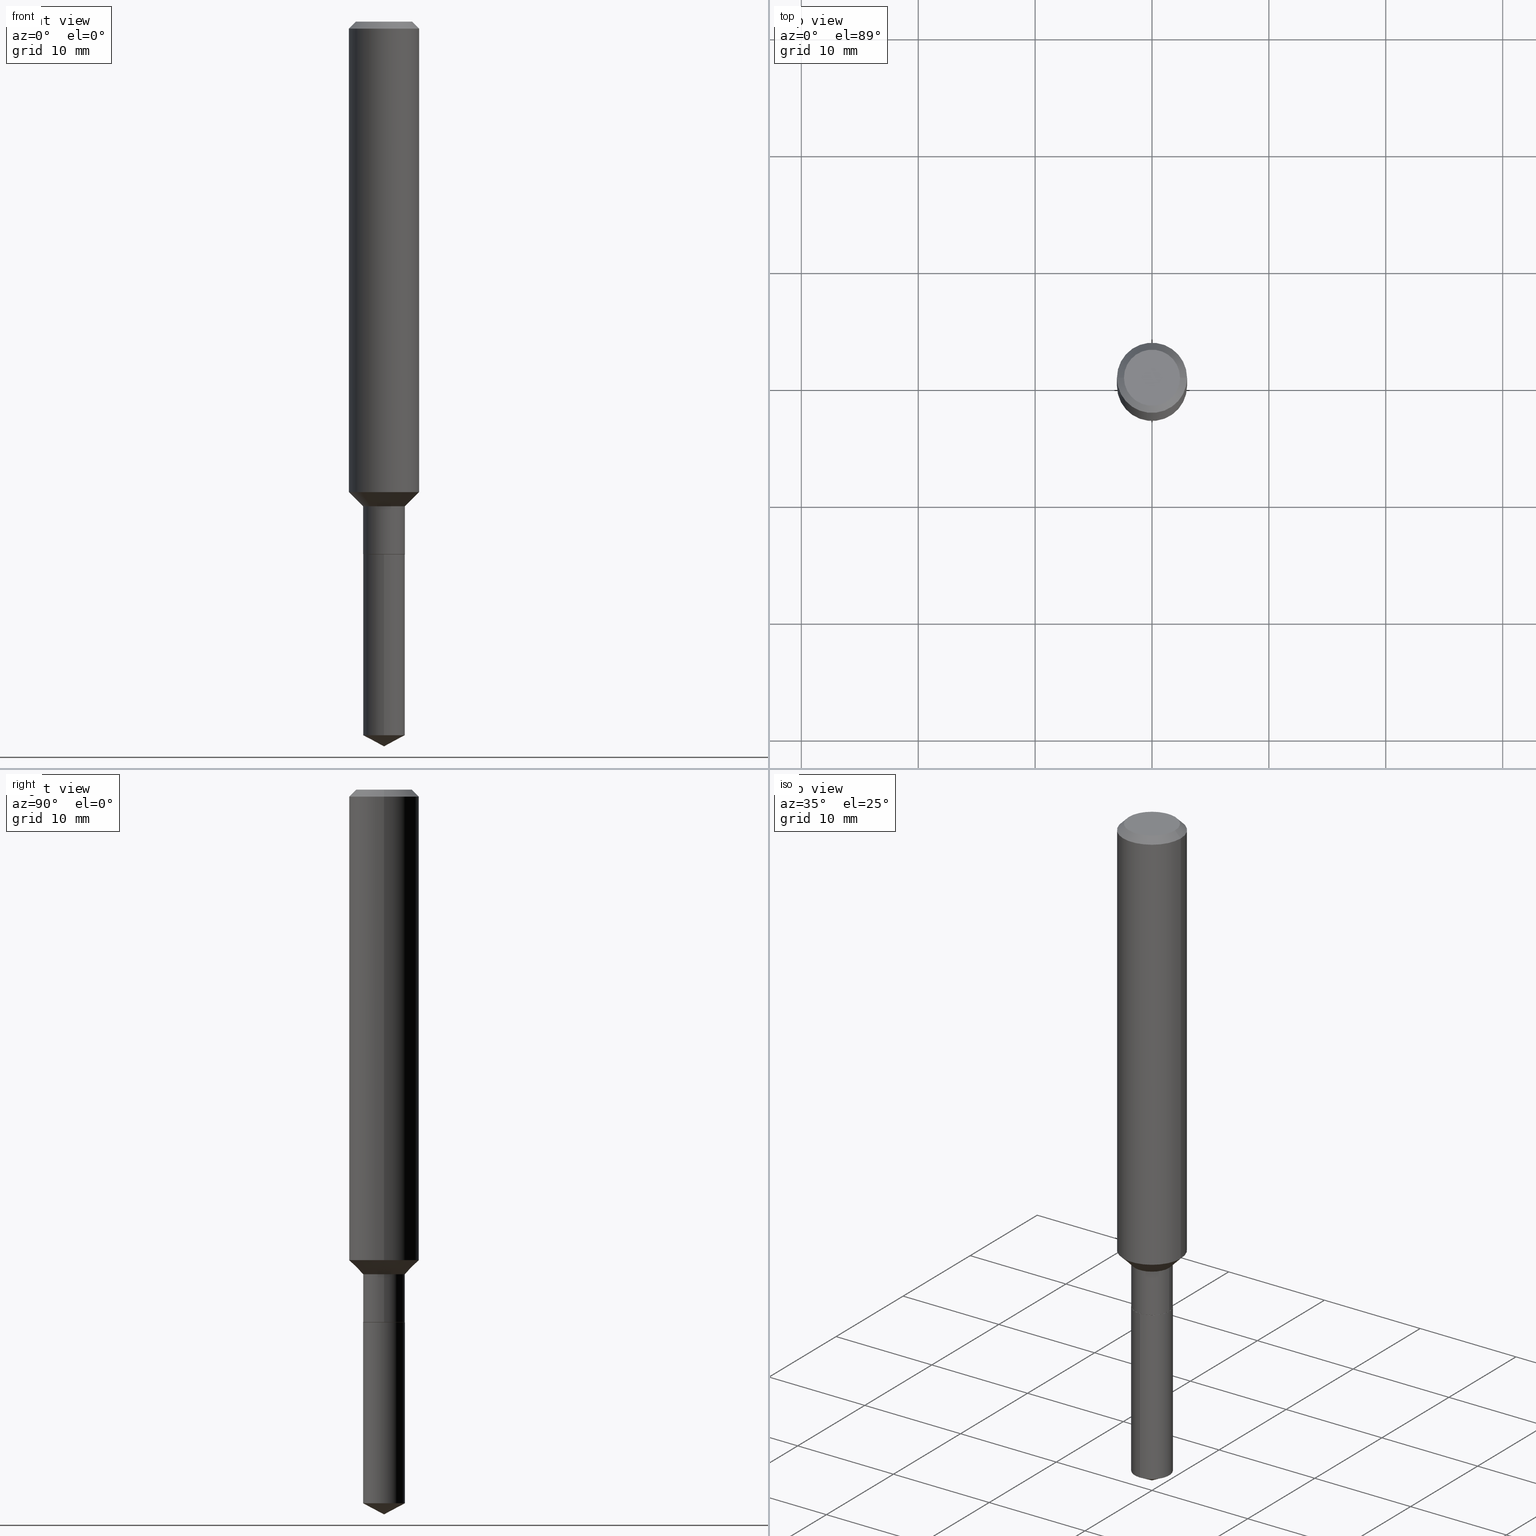
[diagram: canonical four-view strip — front | top / right | iso, engineering-drawing reading convention]
A machine part, canonical four-view strip (front | top / right | iso — engineering-drawing reading convention). The complete STEP part file that produces these views, byte-faithful:
ISO-10303-21;
HEADER;
FILE_DESCRIPTION (( 'STEP AP203' ),
    '1' );
FILE_NAME ('54602.STEP',
    '2024-04-24T15:00:43',
    ( '' ),
    ( '' ),
    'SwSTEP 2.0',
    'SolidWorks 2023',
    '' );
FILE_SCHEMA (( 'CONFIG_CONTROL_DESIGN' ));
ENDSEC;

DATA;
#1 = FACE_OUTER_BOUND ( 'NONE', #437, .T. ) ;
#2 = CALENDAR_DATE ( 2024, 24, 4 ) ;
#3 = DIRECTION ( 'NONE',  ( -2.445544220405332064E-29, 3.491373341387514787E-15, 1.000000000000000000 ) ) ;
#4 = EDGE_CURVE ( 'NONE', #72, #319, #293, .T. ) ;
#5 = FACE_OUTER_BOUND ( 'NONE', #371, .T. ) ;
#6 = LOCAL_TIME ( 11, 0, 43.00000000000000000, #395 ) ;
#7 = LINE ( 'NONE', #468, #381 ) ;
#8 = DIRECTION ( 'NONE',  ( -2.445468806185136597E-29, 3.491481338843145583E-15, 1.000000000000000000 ) ) ;
#9 = DATE_AND_TIME ( #2, #369 ) ;
#10 = ADVANCED_FACE ( 'NONE', ( #139 ), #255, .T. ) ;
#11 = CARTESIAN_POINT ( 'NONE',  ( 3.991983279216617405E-29, -5.699494137527552043E-15, -1.632400000000000295 ) ) ;
#12 = ORIENTED_EDGE ( 'NONE', *, *, #99, .T. ) ;
#13 = CARTESIAN_POINT ( 'NONE',  ( 0.1180999999999999966, -9.071566814582237199E-16, -0.02362000000000013741 ) ) ;
#14 = CIRCLE ( 'NONE', #389, 0.07029999999999998750 ) ;
#15 = EDGE_LOOP ( 'NONE', ( #201, #32, #198, #194 ) ) ;
#16 = DIRECTION ( 'NONE',  ( 1.000000000000000000, 0.000000000000000000, 0.000000000000000000 ) ) ;
#17 = CARTESIAN_POINT ( 'NONE',  ( 0.1181000000000001909, -6.357289221765599043E-15, -1.584600000000000453 ) ) ;
#18 = ORIENTED_EDGE ( 'NONE', *, *, #182, .F. ) ;
#19 = ADVANCED_FACE ( 'NONE', ( #406 ), #177, .T. ) ;
#20 = DIRECTION ( 'NONE',  ( -2.445544220405332064E-29, 3.491373341387514787E-15, 1.000000000000000000 ) ) ;
#21 = ORIENTED_EDGE ( 'NONE', *, *, #374, .F. ) ;
#22 =( NAMED_UNIT ( * ) SI_UNIT ( $, .STERADIAN. ) SOLID_ANGLE_UNIT ( ) );
#23 = DIRECTION ( 'NONE',  ( -2.445468806185136597E-29, 3.491481338843145583E-15, 1.000000000000000000 ) ) ;
#24 = VECTOR ( 'NONE', #410, 39.37007874015748143 ) ;
#25 = ORIENTED_EDGE ( 'NONE', *, *, #239, .F. ) ;
#26 = CALENDAR_DATE ( 2024, 24, 4 ) ;
#27 = CARTESIAN_POINT ( 'NONE',  ( 4.386192850773661378E-29, -6.262320929349066882E-15, -1.793600000000000305 ) ) ;
#28 = ORIENTED_EDGE ( 'NONE', *, *, #330, .F. ) ;
#29 = COORDINATED_UNIVERSAL_TIME_OFFSET ( 5, 0, .BEHIND. ) ;
#30 = DIRECTION ( 'NONE',  ( -6.982962677686265133E-15, -1.000000000000000000, 3.885985766236505386E-15 ) ) ;
#31 = ORIENTED_EDGE ( 'NONE', *, *, #323, .F. ) ;
#32 = ORIENTED_EDGE ( 'NONE', *, *, #379, .T. ) ;
#33 = VECTOR ( 'NONE', #380, 39.37007874015748143 ) ;
#34 = PRODUCT_DEFINITION_SHAPE ( 'NONE', 'NONE',  #252 ) ;
#35 = VECTOR ( 'NONE', #92, 39.37007874015748143 ) ;
#36 = ORIENTED_EDGE ( 'NONE', *, *, #268, .T. ) ;
#37 = VERTEX_POINT ( 'NONE', #140 ) ;
#38 = EDGE_CURVE ( 'NONE', #388, #306, #110, .T. ) ;
#39 = CARTESIAN_POINT ( 'NONE',  ( 5.776197320209326656E-31, -8.246878922347558061E-17, -0.02362000000000013741 ) ) ;
#40 = AXIS2_PLACEMENT_3D ( 'NONE', #299, #3, #266 ) ;
#41 = AXIS2_PLACEMENT_3D ( 'NONE', #473, #420, #192 ) ;
#42 = LINE ( 'NONE', #222, #254 ) ;
#43 = DIRECTION ( 'NONE',  ( -2.445468806185136597E-29, 3.491481338843145583E-15, 1.000000000000000000 ) ) ;
#44 = EDGE_CURVE ( 'NONE', #142, #37, #209, .T. ) ;
#45 = DIRECTION ( 'NONE',  ( -6.982962677686265133E-15, -1.000000000000000000, 3.885985766236505386E-15 ) ) ;
#46 = APPLICATION_CONTEXT ( 'configuration controlled 3d designs of mechanical parts and assemblies' ) ;
#47 = CARTESIAN_POINT ( 'NONE',  ( -9.031207493296003727E-28, 1.289333564144852542E-13, 36.92917874015748225 ) ) ;
#48 = FACE_OUTER_BOUND ( 'NONE', #128, .T. ) ;
#49 = DIRECTION ( 'NONE',  ( -2.445544220405332064E-29, 3.491373341387514787E-15, 1.000000000000000000 ) ) ;
#50 = ORIENTED_EDGE ( 'NONE', *, *, #257, .T. ) ;
#51 = APPROVAL_PERSON_ORGANIZATION ( #237, #413, #321 ) ;
#52 = DIRECTION ( 'NONE',  ( 1.000000000000000000, -6.982962677686266711E-15, 0.000000000000000000 ) ) ;
#53 = AXIS2_PLACEMENT_3D ( 'NONE', #136, #274, #384 ) ;
#54 = EDGE_CURVE ( 'NONE', #483, #487, #225, .T. ) ;
#55 = ORIENTED_EDGE ( 'NONE', *, *, #379, .F. ) ;
#56 = PERSON_AND_ORGANIZATION_ROLE ( 'design_owner' ) ;
#57 = CYLINDRICAL_SURFACE ( 'NONE', #375, 0.07030000000000000138 ) ;
#58 = ORIENTED_EDGE ( 'NONE', *, *, #171, .F. ) ;
#59 = DIRECTION ( 'NONE',  ( 1.000000000000000000, -6.982962677686266711E-15, 4.876176775795935232E-29 ) ) ;
#60 = DATE_AND_TIME ( #26, #131 ) ;
#61 = CARTESIAN_POINT ( 'NONE',  ( 0.1181000000000001077, -8.246878922347488542E-16, 5.758764772215005345E-30 ) ) ;
#62 = AXIS2_PLACEMENT_3D ( 'NONE', #123, #20, #271 ) ;
#63 = ORIENTED_EDGE ( 'NONE', *, *, #121, .F. ) ;
#64 = DIRECTION ( 'NONE',  ( -2.445468806185136597E-29, 3.491481338843145583E-15, 1.000000000000000000 ) ) ;
#65 = ORIENTED_EDGE ( 'NONE', *, *, #171, .T. ) ;
#66 = DIRECTION ( 'NONE',  ( -2.445544220405332064E-29, 3.491373341387514787E-15, 1.000000000000000000 ) ) ;
#67 = CARTESIAN_POINT ( 'NONE',  ( 5.776197320209326656E-31, -8.246878922347558061E-17, -0.02362000000000013741 ) ) ;
#68 = ORIENTED_EDGE ( 'NONE', *, *, #416, .F. ) ;
#69 = AXIS2_PLACEMENT_3D ( 'NONE', #67, #143, #297 ) ;
#70 = AXIS2_PLACEMENT_3D ( 'NONE', #97, #64, #104 ) ;
#71 = APPLICATION_CONTEXT ( 'configuration controlled 3d designs of mechanical parts and assemblies' ) ;
#72 = VERTEX_POINT ( 'NONE', #457 ) ;
#73 = CC_DESIGN_DATE_AND_TIME_ASSIGNMENT ( #398, #282, ( #252 ) ) ;
#74 = LINE ( 'NONE', #259, #368 ) ;
#75 = CARTESIAN_POINT ( 'NONE',  ( -1.414760311887566167E-46, 2.019902775041730779E-32, 5.785231479172097515E-18 ) ) ;
#76 = AXIS2_PLACEMENT_3D ( 'NONE', #168, #366, #399 ) ;
#77 = ADVANCED_FACE ( 'NONE', ( #5 ), #234, .T. ) ;
#78 = DIRECTION ( 'NONE',  ( 1.000000000000000000, -6.982962677686266711E-15, 0.000000000000000000 ) ) ;
#79 = CC_DESIGN_PERSON_AND_ORGANIZATION_ASSIGNMENT ( #91, #402, ( #278 ) ) ;
#80 = LINE ( 'NONE', #219, #419 ) ;
#81 = FACE_OUTER_BOUND ( 'NONE', #465, .T. ) ;
#82 = AXIS2_PLACEMENT_3D ( 'NONE', #11, #155, #52 ) ;
#83 = CARTESIAN_POINT ( 'NONE',  ( -0.07029999999999998750, 4.995115432393503418E-16, -3.458011368449198169E-30 ) ) ;
#84 = CARTESIAN_POINT ( 'NONE',  ( -0.1180999999999999966, -1.968384088444482555E-15, -0.02362000000000013741 ) ) ;
#85 = ORIENTED_EDGE ( 'NONE', *, *, #38, .T. ) ;
#86 = CARTESIAN_POINT ( 'NONE',  ( 0.09447999999999998066, -7.704367267948737704E-16, 5.785231479177098770E-18 ) ) ;
#87 = ADVANCED_FACE ( 'NONE', ( #81 ), #206, .T. ) ;
#88 = CYLINDRICAL_SURFACE ( 'NONE', #261, 0.1181000000000001077 ) ;
#89 = ORIENTED_EDGE ( 'NONE', *, *, #405, .F. ) ;
#90 = VECTOR ( 'NONE', #183, 39.37007874015748854 ) ;
#91 = PERSON_AND_ORGANIZATION ( #248, #236 ) ;
#92 = DIRECTION ( 'NONE',  ( -2.445468806185136877E-29, 3.491481338843145188E-15, 1.000000000000000000 ) ) ;
#93 = APPROVAL_PERSON_ORGANIZATION ( #356, #332, #270 ) ;
#94 = CYLINDRICAL_SURFACE ( 'NONE', #185, 0.07029999999999998750 ) ;
#95 = EDGE_LOOP ( 'NONE', ( #331, #85, #249, #461 ) ) ;
#96 = PERSON_AND_ORGANIZATION_ROLE ( 'creator' ) ;
#97 = CARTESIAN_POINT ( 'NONE',  ( 0.000000000000000000, 0.000000000000000000, 0.000000000000000000 ) ) ;
#98 = ORIENTED_EDGE ( 'NONE', *, *, #38, .F. ) ;
#99 = EDGE_CURVE ( 'NONE', #348, #333, #267, .T. ) ;
#100 = APPROVAL_DATE_TIME ( #480, #413 ) ;
#101 = DIRECTION ( 'NONE',  ( -6.982962677686265133E-15, -1.000000000000000000, 3.885985766236505386E-15 ) ) ;
#102 = CIRCLE ( 'NONE', #373, 0.1180999999999999966 ) ;
#103 = VERTEX_POINT ( 'NONE', #218 ) ;
#104 = DIRECTION ( 'NONE',  ( 1.000000000000000000, -6.982962677686266711E-15, 4.876176775795935793E-29 ) ) ;
#105 = EDGE_LOOP ( 'NONE', ( #137, #65 ) ) ;
#106 = EDGE_CURVE ( 'NONE', #313, #333, #343, .T. ) ;
#107 = CC_DESIGN_SECURITY_CLASSIFICATION ( #195, ( #278 ) ) ;
#108 = ORIENTED_EDGE ( 'NONE', *, *, #44, .F. ) ;
#109 = AXIS2_PLACEMENT_3D ( 'NONE', #262, #415, #45 ) ;
#110 = LINE ( 'NONE', #256, #24 ) ;
#111 = DIRECTION ( 'NONE',  ( -1.000000000000000000, 6.982962677686265922E-15, -4.876176775795935793E-29 ) ) ;
#112 = DIRECTION ( 'NONE',  ( -0.7071067811866138531, 7.493145998870593974E-15, 0.7071067811864811814 ) ) ;
#113 = CC_DESIGN_APPROVAL ( #413, ( #195 ) ) ;
#114 = VECTOR ( 'NONE', #175, 39.37007874015748143 ) ;
#115 = CIRCLE ( 'NONE', #421, 0.06980000000000000093 ) ;
#116 = CC_DESIGN_PERSON_AND_ORGANIZATION_ASSIGNMENT ( #243, #129, ( #278 ) ) ;
#117 = DIRECTION ( 'NONE',  ( -2.445468806185136597E-29, 3.491481338843145583E-15, 1.000000000000000000 ) ) ;
#118 = ADVANCED_FACE ( 'NONE', ( #417 ), #149, .T. ) ;
#119 = DIRECTION ( 'NONE',  ( -2.445468806185136597E-29, 3.491481338843145583E-15, 1.000000000000000000 ) ) ;
#120 = CARTESIAN_POINT ( 'NONE',  ( -7.073801559437830836E-47, 1.009951387520865390E-32, 2.892615739586048757E-18 ) ) ;
#121 = EDGE_CURVE ( 'NONE', #103, #72, #377, .T. ) ;
#122 = CIRCLE ( 'NONE', #453, 0.07030000000000000138 ) ;
#123 = CARTESIAN_POINT ( 'NONE',  ( 4.387415585176754180E-29, -6.264066670018488385E-15, -1.794100000000000028 ) ) ;
#124 = DIRECTION ( 'NONE',  ( 1.000000000000000000, -6.982962677686271444E-15, 0.000000000000000000 ) ) ;
#125 = ORIENTED_EDGE ( 'NONE', *, *, #268, .F. ) ;
#126 = DATE_AND_TIME ( #207, #482 ) ;
#127 = FACE_OUTER_BOUND ( 'NONE', #132, .T. ) ;
#128 = EDGE_LOOP ( 'NONE', ( #397, #469 ) ) ;
#129 = PERSON_AND_ORGANIZATION_ROLE ( 'creator' ) ;
#130 = FACE_OUTER_BOUND ( 'NONE', #15, .T. ) ;
#131 = LOCAL_TIME ( 11, 0, 43.00000000000000000, #427 ) ;
#132 = EDGE_LOOP ( 'NONE', ( #407, #295, #21, #108 ) ) ;
#133 = DIRECTION ( 'NONE',  ( -0.7071067811865493491, 7.493145998870360471E-15, 0.7071067811865457964 ) ) ;
#134 = EDGE_LOOP ( 'NONE', ( #63, #400, #68 ) ) ;
#135 = SECURITY_CLASSIFICATION_LEVEL ( 'unclassified' ) ;
#136 = CARTESIAN_POINT ( 'NONE',  ( 0.000000000000000000, 0.000000000000000000, 0.000000000000000000 ) ) ;
#137 = ORIENTED_EDGE ( 'NONE', *, *, #54, .T. ) ;
#138 = DIRECTION ( 'NONE',  ( 2.445468806185136597E-29, -3.491481338843145583E-15, -1.000000000000000000 ) ) ;
#139 = FACE_OUTER_BOUND ( 'NONE', #181, .T. ) ;
#140 = CARTESIAN_POINT ( 'NONE',  ( 0.07029999999999998750, -6.190396413768896991E-15, -1.632400000000000295 ) ) ;
#141 = CC_DESIGN_PERSON_AND_ORGANIZATION_ASSIGNMENT ( #467, #170, ( #195 ) ) ;
#142 = VERTEX_POINT ( 'NONE', #146 ) ;
#143 = DIRECTION ( 'NONE',  ( 2.445468806185136597E-29, -3.491481338843145583E-15, -1.000000000000000000 ) ) ;
#144 = AXIS2_PLACEMENT_3D ( 'NONE', #298, #152, #78 ) ;
#145 = CIRCLE ( 'NONE', #76, 0.06980000000000000093 ) ;
#146 = CARTESIAN_POINT ( 'NONE',  ( 0.07029999999999998750, -6.753223205590411040E-15, -1.793600000000000305 ) ) ;
#147 = CARTESIAN_POINT ( 'NONE',  ( 5.776197320209326656E-31, -8.246878922347558061E-17, -0.02362000000000013741 ) ) ;
#148 = DIRECTION ( 'NONE',  ( 2.438088387897960049E-29, -3.491481338843145188E-15, -1.000000000000000000 ) ) ;
#149 = CONICAL_SURFACE ( 'NONE', #484, 0.06980000000000000093, 0.7853981633975420928 ) ;
#150 = CIRCLE ( 'NONE', #269, 0.07030000000000000138 ) ;
#151 = EDGE_CURVE ( 'NONE', #37, #317, #338, .T. ) ;
#152 = DIRECTION ( 'NONE',  ( -2.445468806185136597E-29, 3.491481338843145583E-15, 1.000000000000000000 ) ) ;
#153 = ADVANCED_FACE ( 'NONE', ( #1 ), #184, .T. ) ;
#154 = DIRECTION ( 'NONE',  ( 1.000000000000000000, -6.982962677686267499E-15, 4.876435884686232796E-29 ) ) ;
#155 = DIRECTION ( 'NONE',  ( -2.445468806185136597E-29, 3.491481338843145583E-15, 1.000000000000000000 ) ) ;
#156 = ORIENTED_EDGE ( 'NONE', *, *, #330, .T. ) ;
#157 = ADVANCED_BREP_SHAPE_REPRESENTATION ( '54602', ( #312, #479, #454 ), #485 ) ;
#158 = AXIS2_PLACEMENT_3D ( 'NONE', #120, #148, #111 ) ;
#159 = AXIS2_PLACEMENT_3D ( 'NONE', #346, #352, #162 ) ;
#160 = APPROVAL_DATE_TIME ( #9, #332 ) ;
#161 = FACE_OUTER_BOUND ( 'NONE', #95, .T. ) ;
#162 = DIRECTION ( 'NONE',  ( 1.000000000000000000, -6.982962677686269077E-15, 0.000000000000000000 ) ) ;
#163 = ORIENTED_EDGE ( 'NONE', *, *, #405, .T. ) ;
#164 = ADVANCED_FACE ( 'NONE', ( #339 ), #347, .T. ) ;
#165 = DIRECTION ( 'NONE',  ( -0.7071067811865455743, 2.468850131082236945E-15, -0.7071067811865493491 ) ) ;
#166 = ORIENTED_EDGE ( 'NONE', *, *, #186, .T. ) ;
#167 = AXIS2_PLACEMENT_3D ( 'NONE', #431, #193, #425 ) ;
#168 = CARTESIAN_POINT ( 'NONE',  ( 4.387415585176754180E-29, -6.264066670018488385E-15, -1.794100000000000028 ) ) ;
#169 = EDGE_LOOP ( 'NONE', ( #50, #446, #25, #179 ) ) ;
#170 = PERSON_AND_ORGANIZATION_ROLE ( 'classification_officer' ) ;
#171 = EDGE_CURVE ( 'NONE', #487, #483, #288, .T. ) ;
#172 = CYLINDRICAL_SURFACE ( 'NONE', #53, 0.07029999999999998750 ) ;
#173 = ORIENTED_EDGE ( 'NONE', *, *, #44, .T. ) ;
#174 = FACE_OUTER_BOUND ( 'NONE', #232, .T. ) ;
#175 = DIRECTION ( 'NONE',  ( -2.445544220405332064E-29, 3.491373341387514787E-15, 1.000000000000000000 ) ) ;
#176 = CIRCLE ( 'NONE', #490, 0.07029999999999998750 ) ;
#177 = CONICAL_SURFACE ( 'NONE', #69, 0.1180999999999999966, 0.7853981633974456145 ) ;
#178 = CC_DESIGN_APPROVAL ( #332, ( #252 ) ) ;
#179 = ORIENTED_EDGE ( 'NONE', *, *, #205, .F. ) ;
#180 = ORIENTED_EDGE ( 'NONE', *, *, #432, .T. ) ;
#181 = EDGE_LOOP ( 'NONE', ( #98, #163, #423, #31 ) ) ;
#182 = EDGE_CURVE ( 'NONE', #487, #348, #80, .T. ) ;
#183 = DIRECTION ( 'NONE',  ( -6.165590087286837607E-15, -0.8829475928589268774, 0.4694715627858909723 ) ) ;
#184 = CONICAL_SURFACE ( 'NONE', #360, 74.04434902938373853, 1.082104136236487602 ) ;
#185 = AXIS2_PLACEMENT_3D ( 'NONE', #276, #428, #59 ) ;
#186 = EDGE_CURVE ( 'NONE', #333, #348, #102, .T. ) ;
#187 = DIRECTION ( 'NONE',  ( -2.445468806185136877E-29, 3.491481338843145188E-15, 1.000000000000000000 ) ) ;
#188 = DIRECTION ( 'NONE',  ( 1.000000000000000000, -6.982962677686271444E-15, 0.000000000000000000 ) ) ;
#189 = CARTESIAN_POINT ( 'NONE',  ( 3.991983279216617405E-29, -5.699494137527552043E-15, -1.632400000000000295 ) ) ;
#190 = CC_DESIGN_DATE_AND_TIME_ASSIGNMENT ( #126, #363, ( #195 ) ) ;
#191 = DIRECTION ( 'NONE',  ( 1.000000000000000000, -6.982962677686267499E-15, 4.876435884686232796E-29 ) ) ;
#192 = DIRECTION ( 'NONE',  ( 1.000000000000000000, -6.982962677686266711E-15, 0.000000000000000000 ) ) ;
#193 = DIRECTION ( 'NONE',  ( -2.438088387897960049E-29, 3.491481338843145188E-15, 1.000000000000000000 ) ) ;
#194 = ORIENTED_EDGE ( 'NONE', *, *, #450, .F. ) ;
#195 = SECURITY_CLASSIFICATION ( '', '', #135 ) ;
#196 = LINE ( 'NONE', #83, #35 ) ;
#197 = ADVANCED_FACE ( 'NONE', ( #412 ), #341, .F. ) ;
#198 = ORIENTED_EDGE ( 'NONE', *, *, #205, .T. ) ;
#199 =( CONVERSION_BASED_UNIT ( 'INCH', #390 ) LENGTH_UNIT ( ) NAMED_UNIT ( #263 ) );
#200 = CARTESIAN_POINT ( 'NONE',  ( 0.06980000000000000093, -6.751477464920990326E-15, -1.794100000000000028 ) ) ;
#201 = ORIENTED_EDGE ( 'NONE', *, *, #202, .F. ) ;
#202 = EDGE_CURVE ( 'NONE', #474, #478, #74, .T. ) ;
#203 = CARTESIAN_POINT ( 'NONE',  ( 0.000000000000000000, 0.000000000000000000, 0.000000000000000000 ) ) ;
#204 = DIRECTION ( 'NONE',  ( 1.000000000000000000, -6.982962677686266711E-15, 0.000000000000000000 ) ) ;
#205 = EDGE_CURVE ( 'NONE', #324, #142, #42, .T. ) ;
#206 = CONICAL_SURFACE ( 'NONE', #414, 0.07029999999999998750, 0.7853981633974508325 ) ;
#207 = CALENDAR_DATE ( 2024, 24, 4 ) ;
#208 = DIRECTION ( 'NONE',  ( 1.000000000000000000, -6.982962677686266711E-15, 0.000000000000000000 ) ) ;
#209 = LINE ( 'NONE', #452, #305 ) ;
#210 = CARTESIAN_POINT ( 'NONE',  ( 5.877781166329232156E-29, -8.391782298932709493E-15, -2.403520826954198331 ) ) ;
#211 = ORIENTED_EDGE ( 'NONE', *, *, #362, .F. ) ;
#212 = CARTESIAN_POINT ( 'NONE',  ( 5.969331260441399833E-29, -8.522093188992785372E-15, -2.440900000000000070 ) ) ;
#213 = EDGE_CURVE ( 'NONE', #319, #306, #429, .T. ) ;
#214 = CLOSED_SHELL ( 'NONE', ( #310, #164, #153, #10, #260 ) ) ;
#215 = VECTOR ( 'NONE', #283, 39.37007874015748854 ) ;
#216 = EDGE_LOOP ( 'NONE', ( #430, #326, #173, #125 ) ) ;
#217 = CARTESIAN_POINT ( 'NONE',  ( 4.387415585176754180E-29, -6.264066670018488385E-15, -1.794100000000000028 ) ) ;
#218 = CARTESIAN_POINT ( 'NONE',  ( 5.969328887587375050E-29, -8.522093188992785372E-15, -2.440900000000000070 ) ) ;
#219 = CARTESIAN_POINT ( 'NONE',  ( 0.1180999999999999966, -8.926936027602933910E-16, -0.02362000000000013741 ) ) ;
#220 = CONICAL_SURFACE ( 'NONE', #349, 0.1180999999999999966, 0.7853981633974456145 ) ;
#221 = CARTESIAN_POINT ( 'NONE',  ( 0.07029999999999998750, -6.190396413768896991E-15, -1.632400000000000295 ) ) ;
#222 = CARTESIAN_POINT ( 'NONE',  ( 0.06980000000000000093, -6.751477464920990326E-15, -1.794100000000000028 ) ) ;
#223 = EDGE_CURVE ( 'NONE', #365, #313, #7, .T. ) ;
#224 = CARTESIAN_POINT ( 'NONE',  ( 4.387415585176754180E-29, -6.264066670018488385E-15, -1.794100000000000028 ) ) ;
#225 = CIRCLE ( 'NONE', #301, 0.09447999999999998066 ) ;
#226 = AXIS2_PLACEMENT_3D ( 'NONE', #279, #227, #344 ) ;
#227 = DIRECTION ( 'NONE',  ( 2.445544220405331784E-29, -3.491373341387514787E-15, -1.000000000000000000 ) ) ;
#228 = ADVANCED_FACE ( 'NONE', ( #464 ), #318, .F. ) ;
#229 = DIRECTION ( 'NONE',  ( -2.445468806185136597E-29, 3.491481338843145583E-15, 1.000000000000000000 ) ) ;
#230 = ORIENTED_EDGE ( 'NONE', *, *, #151, .T. ) ;
#231 = DIRECTION ( 'NONE',  ( 1.000000000000000000, -6.982962677686266711E-15, 4.876176775795935793E-29 ) ) ;
#232 = EDGE_LOOP ( 'NONE', ( #156, #447, #359, #353 ) ) ;
#233 = CIRCLE ( 'NONE', #460, 0.1181000000000001909 ) ;
#234 = CONICAL_SURFACE ( 'NONE', #144, 0.07029999999999998750, 0.7853981633974508325 ) ;
#235 = APPLICATION_PROTOCOL_DEFINITION ( 'international standard', 'config_control_design', 1994, #71 ) ;
#236 = ORGANIZATION ( 'UNSPECIFIED', 'UNSPECIFIED', '' ) ;
#237 = PERSON_AND_ORGANIZATION ( #248, #236 ) ;
#238 = CARTESIAN_POINT ( 'NONE',  ( 4.995115432394092106E-16, 0.07029999999999372862, -1.794100000000000472 ) ) ;
#239 = EDGE_CURVE ( 'NONE', #142, #478, #442, .T. ) ;
#240 = DIRECTION ( 'NONE',  ( -6.982962677686265133E-15, -1.000000000000000000, 3.885985766236505386E-15 ) ) ;
#241 = ADVANCED_FACE ( 'NONE', ( #273 ), #88, .T. ) ;
#242 = DIRECTION ( 'NONE',  ( 0.000000000000000000, 0.000000000000000000, 1.000000000000000000 ) ) ;
#243 = PERSON_AND_ORGANIZATION ( #248, #236 ) ;
#244 = CARTESIAN_POINT ( 'NONE',  ( 4.995115432394092106E-16, 0.07029999999999161919, -2.403520826954198775 ) ) ;
#245 = ORIENTED_EDGE ( 'NONE', *, *, #223, .T. ) ;
#246 = CONICAL_SURFACE ( 'NONE', #361, 0.06980000000000000093, 0.7853981633975420928 ) ;
#247 = CARTESIAN_POINT ( 'NONE',  ( 3.875089870280967892E-29, -5.532601329530849202E-15, -1.584600000000000453 ) ) ;
#248 = PERSON ( 'UNSPECIFIED', 'UNSPECIFIED', 'UNSPECIFIED', ('UNSPECIFIED'), ('UNSPECIFIED'), ('UNSPECIFIED') ) ;
#249 = ORIENTED_EDGE ( 'NONE', *, *, #213, .F. ) ;
#250 = DIRECTION ( 'NONE',  ( -2.445544220405332064E-29, 3.491373341387514787E-15, 1.000000000000000000 ) ) ;
#251 = ORIENTED_EDGE ( 'NONE', *, *, #186, .F. ) ;
#252 = PRODUCT_DEFINITION ( 'UNKNOWN', '', #278, #287 ) ;
#253 = ORIENTED_EDGE ( 'NONE', *, *, #151, .F. ) ;
#254 = VECTOR ( 'NONE', #378, 39.37007874015748143 ) ;
#255 = CYLINDRICAL_SURFACE ( 'NONE', #489, 0.07030000000000000138 ) ;
#256 = CARTESIAN_POINT ( 'NONE',  ( 4.995115432393942222E-16, 0.07029999999999372862, -1.794100000000000472 ) ) ;
#257 = EDGE_CURVE ( 'NONE', #324, #474, #115, .T. ) ;
#258 = PRODUCT ( '54602', '54602', '', ( #426 ) ) ;
#259 = CARTESIAN_POINT ( 'NONE',  ( -0.06980000000000000093, -5.768107840457937857E-15, -1.794100000000000028 ) ) ;
#260 = ADVANCED_FACE ( 'NONE', ( #48 ), #387, .F. ) ;
#261 = AXIS2_PLACEMENT_3D ( 'NONE', #383, #422, #231 ) ;
#262 = CARTESIAN_POINT ( 'NONE',  ( 4.387415585176754180E-29, -6.264066670018488385E-15, -1.794100000000000028 ) ) ;
#263 = DIMENSIONAL_EXPONENTS ( 1.000000000000000000, 0.000000000000000000, 0.000000000000000000, 0.000000000000000000, 0.000000000000000000, 0.000000000000000000, 0.000000000000000000 ) ;
#264 = DIRECTION ( 'NONE',  ( -6.982962677686265922E-15, -1.000000000000000000, 3.541896320645551402E-15 ) ) ;
#265 = DIRECTION ( 'NONE',  ( 1.000000000000000000, -6.982962677686266711E-15, 0.000000000000000000 ) ) ;
#266 = DIRECTION ( 'NONE',  ( -6.982962677686265922E-15, -1.000000000000000000, 3.541896320645551402E-15 ) ) ;
#267 = CIRCLE ( 'NONE', #334, 0.1180999999999999966 ) ;
#268 = EDGE_CURVE ( 'NONE', #365, #37, #289, .T. ) ;
#269 = AXIS2_PLACEMENT_3D ( 'NONE', #291, #66, #101 ) ;
#270 = APPROVAL_ROLE ( '' ) ;
#271 = DIRECTION ( 'NONE',  ( -6.982962677686265133E-15, -1.000000000000000000, 3.885985766236505386E-15 ) ) ;
#272 = ORIENTED_EDGE ( 'NONE', *, *, #374, .T. ) ;
#273 = FACE_OUTER_BOUND ( 'NONE', #433, .T. ) ;
#274 = DIRECTION ( 'NONE',  ( -2.445468806185136597E-29, 3.491481338843145583E-15, 1.000000000000000000 ) ) ;
#275 = ADVANCED_FACE ( 'NONE', ( #127 ), #94, .T. ) ;
#276 = CARTESIAN_POINT ( 'NONE',  ( 0.000000000000000000, 0.000000000000000000, 0.000000000000000000 ) ) ;
#277 = ORIENTED_EDGE ( 'NONE', *, *, #411, .T. ) ;
#278 = PRODUCT_DEFINITION_FORMATION_WITH_SPECIFIED_SOURCE ( 'ANY', '', #258, .NOT_KNOWN. ) ;
#279 = CARTESIAN_POINT ( 'NONE',  ( 4.387415585176754180E-29, -6.264066670018488385E-15, -1.794100000000000028 ) ) ;
#280 = EDGE_LOOP ( 'NONE', ( #370, #55 ) ) ;
#281 = CARTESIAN_POINT ( 'NONE',  ( -0.07030000000000000138, -5.481395990198959614E-15, -1.793600000000000305 ) ) ;
#282 = DATE_TIME_ROLE ( 'creation_date' ) ;
#283 = DIRECTION ( 'NONE',  ( 6.273719981627768443E-15, 0.8829475928589300970, 0.4694715627858847551 ) ) ;
#284 = COORDINATED_UNIVERSAL_TIME_OFFSET ( 5, 0, .BEHIND. ) ;
#285 = CARTESIAN_POINT ( 'NONE',  ( 5.776197320209326656E-31, -8.246878922347558061E-17, -0.02362000000000013741 ) ) ;
#286 = EDGE_LOOP ( 'NONE', ( #18, #449, #409, #166 ) ) ;
#287 = DESIGN_CONTEXT ( 'detailed design', #46, 'design' ) ;
#288 = CIRCLE ( 'NONE', #458, 0.09447999999999998066 ) ;
#289 = CIRCLE ( 'NONE', #82, 0.07029999999999998750 ) ;
#290 = APPROVAL_STATUS ( 'not_yet_approved' ) ;
#291 = CARTESIAN_POINT ( 'NONE',  ( 5.877781166329232156E-29, -8.391782298932709493E-15, -2.403520826954198331 ) ) ;
#292 = CARTESIAN_POINT ( 'NONE',  ( -4.909022762413006725E-16, -0.07030000000000626026, -1.794099999999999806 ) ) ;
#293 = LINE ( 'NONE', #292, #114 ) ;
#294 = EDGE_CURVE ( 'NONE', #478, #365, #196, .T. ) ;
#295 = ORIENTED_EDGE ( 'NONE', *, *, #294, .T. ) ;
#296 = VECTOR ( 'NONE', #336, 39.37007874015748143 ) ;
#297 = DIRECTION ( 'NONE',  ( -1.000000000000000000, 6.982962677686266711E-15, 0.000000000000000000 ) ) ;
#298 = CARTESIAN_POINT ( 'NONE',  ( 3.991983279216617405E-29, -5.699494137527552043E-15, -1.632400000000000295 ) ) ;
#299 = CARTESIAN_POINT ( 'NONE',  ( -9.031207493296003727E-28, 1.289333564144852542E-13, 36.92917874015748225 ) ) ;
#300 = DIRECTION ( 'NONE',  ( -2.445544220405332064E-29, 3.491373341387514787E-15, 1.000000000000000000 ) ) ;
#301 = AXIS2_PLACEMENT_3D ( 'NONE', #75, #117, #191 ) ;
#302 = DIRECTION ( 'NONE',  ( -2.445468806185136597E-29, 3.491481338843145583E-15, 1.000000000000000000 ) ) ;
#303 = DIRECTION ( 'NONE',  ( 1.000000000000000000, -6.982962677686266711E-15, 0.000000000000000000 ) ) ;
#304 = CARTESIAN_POINT ( 'NONE',  ( 4.387415585176754180E-29, -6.264066670018488385E-15, -1.794100000000000028 ) ) ;
#305 = VECTOR ( 'NONE', #187, 39.37007874015748143 ) ;
#306 = VERTEX_POINT ( 'NONE', #238 ) ;
#307 = UNCERTAINTY_MEASURE_WITH_UNIT (LENGTH_MEASURE( 1.000000000000000082E-05 ), #199, 'distance_accuracy_value', 'NONE');
#308 = CARTESIAN_POINT ( 'NONE',  ( -0.1181000000000001909, -4.693450358598171005E-15, -1.584600000000000453 ) ) ;
#309 = ORIENTED_EDGE ( 'NONE', *, *, #106, .F. ) ;
#310 = ADVANCED_FACE ( 'NONE', ( #161 ), #57, .T. ) ;
#311 = CARTESIAN_POINT ( 'NONE',  ( 4.387415585176754180E-29, -6.264066670018488385E-15, -1.794100000000000028 ) ) ;
#312 = MANIFOLD_SOLID_BREP ( 'Body-Move/Copy2[1]', #214 ) ;
#313 = VERTEX_POINT ( 'NONE', #308 ) ;
#314 = CC_DESIGN_PERSON_AND_ORGANIZATION_ASSIGNMENT ( #463, #96, ( #252 ) ) ;
#315 = SHAPE_DEFINITION_REPRESENTATION ( #34, #157 ) ;
#316 = CARTESIAN_POINT ( 'NONE',  ( -0.07029999999999998750, -5.481395990198959614E-15, -1.632400000000000295 ) ) ;
#317 = VERTEX_POINT ( 'NONE', #17 ) ;
#318 = PLANE ( 'NONE',  #167 ) ;
#319 = VERTEX_POINT ( 'NONE', #459 ) ;
#320 = PERSON_AND_ORGANIZATION ( #248, #236 ) ;
#321 = APPROVAL_ROLE ( '' ) ;
#322 = DIRECTION ( 'NONE',  ( 1.000000000000000000, -6.982962677686269077E-15, 0.000000000000000000 ) ) ;
#323 = EDGE_CURVE ( 'NONE', #306, #319, #386, .T. ) ;
#324 = VERTEX_POINT ( 'NONE', #200 ) ;
#325 = LINE ( 'NONE', #61, #401 ) ;
#326 = ORIENTED_EDGE ( 'NONE', *, *, #450, .T. ) ;
#327 = LOCAL_TIME ( 11, 0, 43.00000000000000000, #284 ) ;
#328 = CLOSED_SHELL ( 'NONE', ( #118, #19, #382, #77, #275, #471, #87, #241, #462, #197, #228, #354 ) ) ;
#329 = ORIENTED_EDGE ( 'NONE', *, *, #223, .F. ) ;
#330 = EDGE_CURVE ( 'NONE', #317, #313, #448, .T. ) ;
#331 = ORIENTED_EDGE ( 'NONE', *, *, #416, .T. ) ;
#332 = APPROVAL ( #475, 'UNSPECIFIED' ) ;
#333 = VERTEX_POINT ( 'NONE', #84 ) ;
#334 = AXIS2_PLACEMENT_3D ( 'NONE', #39, #456, #418 ) ;
#335 = VECTOR ( 'NONE', #165, 39.37007874015748854 ) ;
#336 = DIRECTION ( 'NONE',  ( 0.7071067811865493491, -2.468850131082275993E-15, 0.7071067811865457964 ) ) ;
#337 = COORDINATED_UNIVERSAL_TIME_OFFSET ( 5, 0, .BEHIND. ) ;
#338 = LINE ( 'NONE', #221, #296 ) ;
#339 = FACE_OUTER_BOUND ( 'NONE', #134, .T. ) ;
#340 = CC_DESIGN_PERSON_AND_ORGANIZATION_ASSIGNMENT ( #320, #56, ( #258 ) ) ;
#341 = PLANE ( 'NONE',  #158 ) ;
#342 = APPROVAL_PERSON_ORGANIZATION ( #351, #438, #391 ) ;
#343 = LINE ( 'NONE', #376, #33 ) ;
#344 = DIRECTION ( 'NONE',  ( 6.982962677686265922E-15, 1.000000000000000000, -3.491373341387514787E-15 ) ) ;
#345 = ORIENTED_EDGE ( 'NONE', *, *, #432, .F. ) ;
#346 = CARTESIAN_POINT ( 'NONE',  ( 3.875089870280967892E-29, -5.532601329530849202E-15, -1.584600000000000453 ) ) ;
#347 = CONICAL_SURFACE ( 'NONE', #40, 74.04434902938373853, 1.082104136236487602 ) ;
#348 = VERTEX_POINT ( 'NONE', #13 ) ;
#349 = AXIS2_PLACEMENT_3D ( 'NONE', #285, #138, #443 ) ;
#350 =( NAMED_UNIT ( * ) PLANE_ANGLE_UNIT ( ) SI_UNIT ( $, .RADIAN. ) );
#351 = PERSON_AND_ORGANIZATION ( #248, #236 ) ;
#352 = DIRECTION ( 'NONE',  ( -2.445468806185136597E-29, 3.491481338843145583E-15, 1.000000000000000000 ) ) ;
#353 = ORIENTED_EDGE ( 'NONE', *, *, #411, .F. ) ;
#354 = ADVANCED_FACE ( 'NONE', ( #130 ), #246, .T. ) ;
#355 = LINE ( 'NONE', #396, #335 ) ;
#356 = PERSON_AND_ORGANIZATION ( #248, #236 ) ;
#357 = CALENDAR_DATE ( 2024, 24, 4 ) ;
#358 = DIRECTION ( 'NONE',  ( -2.445468806185136597E-29, 3.491481338843145583E-15, 1.000000000000000000 ) ) ;
#359 = ORIENTED_EDGE ( 'NONE', *, *, #99, .F. ) ;
#360 = AXIS2_PLACEMENT_3D ( 'NONE', #47, #300, #264 ) ;
#361 = AXIS2_PLACEMENT_3D ( 'NONE', #311, #229, #124 ) ;
#362 = EDGE_CURVE ( 'NONE', #483, #333, #355, .T. ) ;
#363 = DATE_TIME_ROLE ( 'classification_date' ) ;
#364 = FACE_OUTER_BOUND ( 'NONE', #216, .T. ) ;
#365 = VERTEX_POINT ( 'NONE', #316 ) ;
#366 = DIRECTION ( 'NONE',  ( -2.445468806185136597E-29, 3.491481338843145583E-15, 1.000000000000000000 ) ) ;
#367 = ORIENTED_EDGE ( 'NONE', *, *, #121, .T. ) ;
#368 = VECTOR ( 'NONE', #112, 39.37007874015748143 ) ;
#369 = LOCAL_TIME ( 11, 0, 43.00000000000000000, #337 ) ;
#370 = ORIENTED_EDGE ( 'NONE', *, *, #257, .F. ) ;
#371 = EDGE_LOOP ( 'NONE', ( #272, #245, #28, #253 ) ) ;
#372 = CARTESIAN_POINT ( 'NONE',  ( 5.969058286282470108E-29, -8.522480705463078966E-15, -2.440900000000000070 ) ) ;
#373 = AXIS2_PLACEMENT_3D ( 'NONE', #147, #119, #303 ) ;
#374 = EDGE_CURVE ( 'NONE', #37, #365, #176, .T. ) ;
#375 = AXIS2_PLACEMENT_3D ( 'NONE', #304, #49, #240 ) ;
#376 = CARTESIAN_POINT ( 'NONE',  ( -0.1181000000000001077, 8.391509709326790846E-16, -5.809262341591049389E-30 ) ) ;
#377 = LINE ( 'NONE', #372, #90 ) ;
#378 = DIRECTION ( 'NONE',  ( 0.7071067811866138531, -2.468850131082952047E-15, 0.7071067811864811814 ) ) ;
#379 = EDGE_CURVE ( 'NONE', #474, #324, #145, .T. ) ;
#380 = DIRECTION ( 'NONE',  ( -2.445468806185136877E-29, 3.491481338843145188E-15, 1.000000000000000000 ) ) ;
#381 = VECTOR ( 'NONE', #133, 39.37007874015748143 ) ;
#382 = ADVANCED_FACE ( 'NONE', ( #174 ), #440, .T. ) ;
#383 = CARTESIAN_POINT ( 'NONE',  ( 0.000000000000000000, 0.000000000000000000, 0.000000000000000000 ) ) ;
#384 = DIRECTION ( 'NONE',  ( 1.000000000000000000, -6.982962677686266711E-15, 4.876176775795935232E-29 ) ) ;
#385 = DIRECTION ( 'NONE',  ( 1.000000000000000000, -6.982962677686271444E-15, 0.000000000000000000 ) ) ;
#386 = CIRCLE ( 'NONE', #62, 0.07030000000000000138 ) ;
#387 = PLANE ( 'NONE',  #226 ) ;
#388 = VERTEX_POINT ( 'NONE', #244 ) ;
#389 = AXIS2_PLACEMENT_3D ( 'NONE', #27, #481, #208 ) ;
#390 = LENGTH_MEASURE_WITH_UNIT ( LENGTH_MEASURE( 0.02539999999999999897 ), #434 );
#391 = APPROVAL_ROLE ( '' ) ;
#392 = CARTESIAN_POINT ( 'NONE',  ( 4.387415585176754180E-29, -6.264066670018488385E-15, -1.794100000000000028 ) ) ;
#393 = EDGE_LOOP ( 'NONE', ( #58, #441, #12, #211 ) ) ;
#394 = APPLICATION_PROTOCOL_DEFINITION ( 'international standard', 'config_control_design', 1994, #46 ) ;
#395 = COORDINATED_UNIVERSAL_TIME_OFFSET ( 5, 0, .BEHIND. ) ;
#396 = CARTESIAN_POINT ( 'NONE',  ( -0.1180999999999999966, 7.422191030112725094E-16, -0.02362000000000013741 ) ) ;
#397 = ORIENTED_EDGE ( 'NONE', *, *, #213, .T. ) ;
#398 = DATE_AND_TIME ( #357, #6 ) ;
#399 = DIRECTION ( 'NONE',  ( 1.000000000000000000, -6.982962677686271444E-15, 0.000000000000000000 ) ) ;
#400 = ORIENTED_EDGE ( 'NONE', *, *, #466, .T. ) ;
#401 = VECTOR ( 'NONE', #436, 39.37007874015748143 ) ;
#402 = PERSON_AND_ORGANIZATION_ROLE ( 'design_supplier' ) ;
#403 = LINE ( 'NONE', #212, #215 ) ;
#404 = FACE_OUTER_BOUND ( 'NONE', #286, .T. ) ;
#405 = EDGE_CURVE ( 'NONE', #388, #72, #122, .T. ) ;
#406 = FACE_OUTER_BOUND ( 'NONE', #393, .T. ) ;
#407 = ORIENTED_EDGE ( 'NONE', *, *, #239, .T. ) ;
#408 = CC_DESIGN_APPROVAL ( #438, ( #278 ) ) ;
#409 = ORIENTED_EDGE ( 'NONE', *, *, #362, .T. ) ;
#410 = DIRECTION ( 'NONE',  ( -2.445544220405332064E-29, 3.491373341387514787E-15, 1.000000000000000000 ) ) ;
#411 = EDGE_CURVE ( 'NONE', #317, #348, #325, .T. ) ;
#412 = FACE_OUTER_BOUND ( 'NONE', #105, .T. ) ;
#413 = APPROVAL ( #290, 'UNSPECIFIED' ) ;
#414 = AXIS2_PLACEMENT_3D ( 'NONE', #189, #302, #265 ) ;
#415 = DIRECTION ( 'NONE',  ( -2.445544220405332064E-29, 3.491373341387514787E-15, 1.000000000000000000 ) ) ;
#416 = EDGE_CURVE ( 'NONE', #72, #388, #150, .T. ) ;
#417 = FACE_OUTER_BOUND ( 'NONE', #169, .T. ) ;
#418 = DIRECTION ( 'NONE',  ( 1.000000000000000000, -6.982962677686266711E-15, 0.000000000000000000 ) ) ;
#419 = VECTOR ( 'NONE', #455, 39.37007874015748854 ) ;
#420 = DIRECTION ( 'NONE',  ( -2.445468806185136597E-29, 3.491481338843145583E-15, 1.000000000000000000 ) ) ;
#421 = AXIS2_PLACEMENT_3D ( 'NONE', #392, #358, #385 ) ;
#422 = DIRECTION ( 'NONE',  ( -2.445468806185136597E-29, 3.491481338843145583E-15, 1.000000000000000000 ) ) ;
#423 = ORIENTED_EDGE ( 'NONE', *, *, #4, .T. ) ;
#424 = CARTESIAN_POINT ( 'NONE',  ( -0.09447999999999998066, 7.009847083995354710E-16, 5.785231479167339697E-18 ) ) ;
#425 = DIRECTION ( 'NONE',  ( 1.000000000000000000, -6.982962677686265922E-15, 4.876176775795935793E-29 ) ) ;
#426 = MECHANICAL_CONTEXT ( 'NONE', #71, 'mechanical' ) ;
#427 = COORDINATED_UNIVERSAL_TIME_OFFSET ( 5, 0, .BEHIND. ) ;
#428 = DIRECTION ( 'NONE',  ( -2.445468806185136597E-29, 3.491481338843145583E-15, 1.000000000000000000 ) ) ;
#429 = CIRCLE ( 'NONE', #109, 0.07030000000000000138 ) ;
#430 = ORIENTED_EDGE ( 'NONE', *, *, #294, .F. ) ;
#431 = CARTESIAN_POINT ( 'NONE',  ( 4.387415585176754180E-29, -6.264066670018488385E-15, -1.794100000000000028 ) ) ;
#432 = EDGE_CURVE ( 'NONE', #313, #317, #233, .T. ) ;
#433 = EDGE_LOOP ( 'NONE', ( #309, #180, #277, #251 ) ) ;
#434 =( LENGTH_UNIT ( ) NAMED_UNIT ( * ) SI_UNIT ( $, .METRE. ) );
#435 = APPROVAL_STATUS ( 'not_yet_approved' ) ;
#436 = DIRECTION ( 'NONE',  ( -2.445468806185136877E-29, 3.491481338843145188E-15, 1.000000000000000000 ) ) ;
#437 = EDGE_LOOP ( 'NONE', ( #486, #367, #89 ) ) ;
#438 = APPROVAL ( #435, 'UNSPECIFIED' ) ;
#439 = CALENDAR_DATE ( 2024, 24, 4 ) ;
#440 = CYLINDRICAL_SURFACE ( 'NONE', #70, 0.1181000000000001077 ) ;
#441 = ORIENTED_EDGE ( 'NONE', *, *, #182, .T. ) ;
#442 = CIRCLE ( 'NONE', #41, 0.07029999999999998750 ) ;
#443 = DIRECTION ( 'NONE',  ( -1.000000000000000000, 6.982962677686266711E-15, 0.000000000000000000 ) ) ;
#444 = DIRECTION ( 'NONE',  ( -6.982962677686265133E-15, -1.000000000000000000, 3.885985766236505386E-15 ) ) ;
#445 = PRODUCT_RELATED_PRODUCT_CATEGORY ( 'detail', '', ( #258 ) ) ;
#446 = ORIENTED_EDGE ( 'NONE', *, *, #202, .T. ) ;
#447 = ORIENTED_EDGE ( 'NONE', *, *, #106, .T. ) ;
#448 = CIRCLE ( 'NONE', #159, 0.1181000000000001909 ) ;
#449 = ORIENTED_EDGE ( 'NONE', *, *, #54, .F. ) ;
#450 = EDGE_CURVE ( 'NONE', #478, #142, #14, .T. ) ;
#451 = CARTESIAN_POINT ( 'NONE',  ( -1.414760311887566167E-46, 2.019902775041730779E-32, 5.785231479172097515E-18 ) ) ;
#452 = CARTESIAN_POINT ( 'NONE',  ( 0.07029999999999998750, -4.909022762413444543E-16, 3.427952273384541736E-30 ) ) ;
#453 = AXIS2_PLACEMENT_3D ( 'NONE', #210, #250, #30 ) ;
#454 = AXIS2_PLACEMENT_3D ( 'NONE', #203, #242, #16 ) ;
#455 = DIRECTION ( 'NONE',  ( 0.7071067811865455743, -7.319954787623248157E-15, -0.7071067811865493491 ) ) ;
#456 = DIRECTION ( 'NONE',  ( -2.445468806185136597E-29, 3.491481338843145583E-15, 1.000000000000000000 ) ) ;
#457 = CARTESIAN_POINT ( 'NONE',  ( -4.909022762412858814E-16, -0.07030000000000839744, -2.403520826954198331 ) ) ;
#458 = AXIS2_PLACEMENT_3D ( 'NONE', #451, #8, #154 ) ;
#459 = CARTESIAN_POINT ( 'NONE',  ( -4.909022762413006725E-16, -0.07030000000000626026, -1.794099999999999806 ) ) ;
#460 = AXIS2_PLACEMENT_3D ( 'NONE', #247, #477, #322 ) ;
#461 = ORIENTED_EDGE ( 'NONE', *, *, #4, .F. ) ;
#462 = ADVANCED_FACE ( 'NONE', ( #404 ), #220, .T. ) ;
#463 = PERSON_AND_ORGANIZATION ( #248, #236 ) ;
#464 = FACE_OUTER_BOUND ( 'NONE', #280, .T. ) ;
#465 = EDGE_LOOP ( 'NONE', ( #329, #36, #230, #345 ) ) ;
#466 = EDGE_CURVE ( 'NONE', #103, #388, #403, .T. ) ;
#467 = PERSON_AND_ORGANIZATION ( #248, #236 ) ;
#468 = CARTESIAN_POINT ( 'NONE',  ( -0.07029999999999998750, -5.199982594288202194E-15, -1.632400000000000295 ) ) ;
#469 = ORIENTED_EDGE ( 'NONE', *, *, #323, .T. ) ;
#470 = CARTESIAN_POINT ( 'NONE',  ( -0.06980000000000000093, -5.765458613283827445E-15, -1.794100000000000028 ) ) ;
#471 = ADVANCED_FACE ( 'NONE', ( #364 ), #172, .T. ) ;
#472 = CARTESIAN_POINT ( 'NONE',  ( 3.991983279216617405E-29, -5.699494137527552043E-15, -1.632400000000000295 ) ) ;
#473 = CARTESIAN_POINT ( 'NONE',  ( 4.386192850773661378E-29, -6.262320929349066882E-15, -1.793600000000000305 ) ) ;
#474 = VERTEX_POINT ( 'NONE', #470 ) ;
#475 = APPROVAL_STATUS ( 'not_yet_approved' ) ;
#476 = APPROVAL_DATE_TIME ( #60, #438 ) ;
#477 = DIRECTION ( 'NONE',  ( -2.445468806185136597E-29, 3.491481338843145583E-15, 1.000000000000000000 ) ) ;
#478 = VERTEX_POINT ( 'NONE', #281 ) ;
#479 = MANIFOLD_SOLID_BREP ( 'Body-Move/Copy2[2]', #328 ) ;
#480 = DATE_AND_TIME ( #439, #327 ) ;
#481 = DIRECTION ( 'NONE',  ( -2.445468806185136597E-29, 3.491481338843145583E-15, 1.000000000000000000 ) ) ;
#482 = LOCAL_TIME ( 11, 0, 43.00000000000000000, #29 ) ;
#483 = VERTEX_POINT ( 'NONE', #424 ) ;
#484 = AXIS2_PLACEMENT_3D ( 'NONE', #224, #43, #188 ) ;
#485 =( GEOMETRIC_REPRESENTATION_CONTEXT ( 3 ) GLOBAL_UNCERTAINTY_ASSIGNED_CONTEXT ( ( #307 ) ) GLOBAL_UNIT_ASSIGNED_CONTEXT ( ( #199, #350, #22 ) ) REPRESENTATION_CONTEXT ( 'NONE', 'WORKASPACE' ) );
#486 = ORIENTED_EDGE ( 'NONE', *, *, #466, .F. ) ;
#487 = VERTEX_POINT ( 'NONE', #86 ) ;
#488 = DIRECTION ( 'NONE',  ( -2.445544220405332064E-29, 3.491373341387514787E-15, 1.000000000000000000 ) ) ;
#489 = AXIS2_PLACEMENT_3D ( 'NONE', #217, #488, #444 ) ;
#490 = AXIS2_PLACEMENT_3D ( 'NONE', #472, #23, #204 ) ;
ENDSEC;
END-ISO-10303-21;
